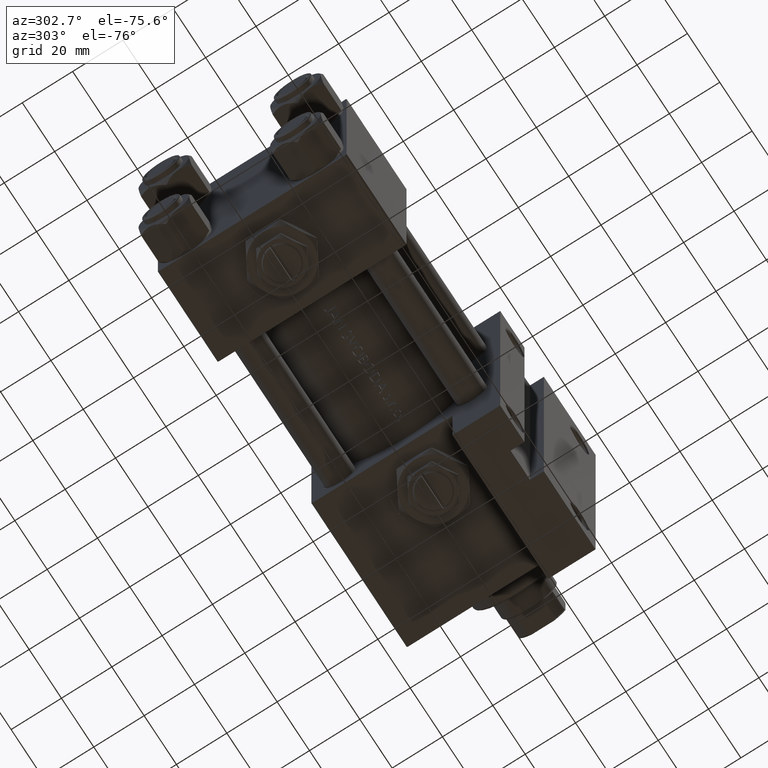
[diagram: clean part render]
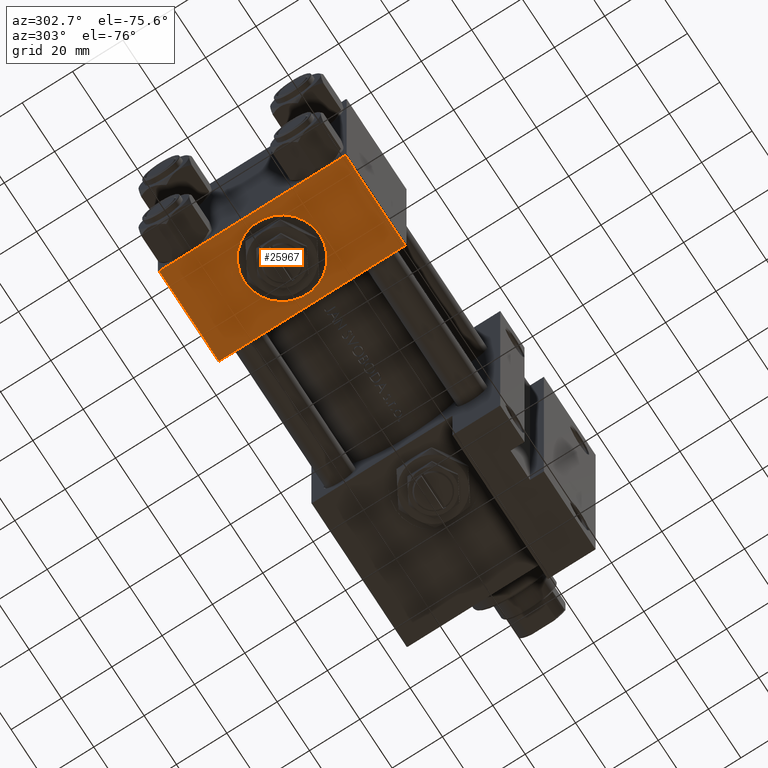
[diagram: same view with one face highlighted and labeled with its STEP entity id]
A machine part, auxiliary view. The second image highlights one B-rep face of the part: STEP entity #25967.
In plain terms, the highlighted planar face has unit normal (0, 0, -1).
Its self-contained STEP definition (entity closure, byte-faithful):
#267 = EDGE_LOOP ( 'NONE', ( #18812, #18388, #18801, #21603 ) ) ;
#329 = DIRECTION ( 'NONE',  ( -1.000000000000000000, 0.000000000000000000, 0.000000000000000000 ) ) ;
#1080 = CARTESIAN_POINT ( 'NONE',  ( 37.00000000000000000, 37.49999999999999289, -36.99999999999998579 ) ) ;
#2549 = ORIENTED_EDGE ( 'NONE', *, *, #33579, .F. ) ;
#3849 = LINE ( 'NONE', #1080, #5016 ) ;
#4113 = AXIS2_PLACEMENT_3D ( 'NONE', #27528, #20009, #45617 ) ;
#5016 = VECTOR ( 'NONE', #329, 1000.000000000000000 ) ;
#5230 = VERTEX_POINT ( 'NONE', #39012 ) ;
#8533 = DIRECTION ( 'NONE',  ( 0.000000000000000000, 0.000000000000000000, -1.000000000000000000 ) ) ;
#10283 = VERTEX_POINT ( 'NONE', #22530 ) ;
#10729 = CIRCLE ( 'NONE', #25963, 15.00000000000000178 ) ;
#12163 = CARTESIAN_POINT ( 'NONE',  ( 0.000000000000000000, 37.49999999999999289, 37.50000000000000000 ) ) ;
#12794 = LINE ( 'NONE', #24083, #15486 ) ;
#14521 = CARTESIAN_POINT ( 'NONE',  ( 37.00000000000000000, 37.49999999999999289, -36.99999999999998579 ) ) ;
#15486 = VECTOR ( 'NONE', #8533, 1000.000000000000000 ) ;
#17958 = CARTESIAN_POINT ( 'NONE',  ( 18.50000000000000000, 37.49999999999999289, 0.000000000000000000 ) ) ;
#18388 = ORIENTED_EDGE ( 'NONE', *, *, #28582, .T. ) ;
#18765 = FACE_BOUND ( 'NONE', #48417, .T. ) ;
#18801 = ORIENTED_EDGE ( 'NONE', *, *, #37466, .F. ) ;
#18812 = ORIENTED_EDGE ( 'NONE', *, *, #39961, .T. ) ;
#18873 = DIRECTION ( 'NONE',  ( 0.000000000000000000, 1.000000000000000000, 0.000000000000000000 ) ) ;
#19959 = LINE ( 'NONE', #12163, #30889 ) ;
#20009 = DIRECTION ( 'NONE',  ( -0.000000000000000000, 1.000000000000000000, 0.000000000000000000 ) ) ;
#21603 = ORIENTED_EDGE ( 'NONE', *, *, #42030, .T. ) ;
#21712 = DIRECTION ( 'NONE',  ( 0.000000000000000000, 1.000000000000000000, 0.000000000000000000 ) ) ;
#21799 = VECTOR ( 'NONE', #33337, 1000.000000000000000 ) ;
#22270 = PLANE ( 'NONE',  #4113 ) ;
#22296 = LINE ( 'NONE', #41628, #21799 ) ;
#22530 = CARTESIAN_POINT ( 'NONE',  ( 18.50000000000000000, 37.49999999999999289, 15.00000000000000178 ) ) ;
#24083 = CARTESIAN_POINT ( 'NONE',  ( 37.00000000000000000, 37.49999999999999289, 37.50000000000000000 ) ) ;
#24201 = DIRECTION ( 'NONE',  ( 0.000000000000000000, 0.000000000000000000, -1.000000000000000000 ) ) ;
#25118 = AXIS2_PLACEMENT_3D ( 'NONE', #37203, #18873, #26133 ) ;
#25319 = CARTESIAN_POINT ( 'NONE',  ( 37.00000000000000000, 37.49999999999999289, 37.00000000000000000 ) ) ;
#25963 = AXIS2_PLACEMENT_3D ( 'NONE', #17958, #21712, #33257 ) ;
#25967 = ADVANCED_FACE ( 'NONE', ( #18765, #34063 ), #22270, .T. ) ;
#26133 = DIRECTION ( 'NONE',  ( 0.000000000000000000, 0.000000000000000000, 1.000000000000000000 ) ) ;
#27528 = CARTESIAN_POINT ( 'NONE',  ( 37.00000000000000000, 37.49999999999999289, 37.50000000000000000 ) ) ;
#28582 = EDGE_CURVE ( 'NONE', #44053, #43721, #3849, .T. ) ;
#28860 = ORIENTED_EDGE ( 'NONE', *, *, #35069, .F. ) ;
#29158 = CARTESIAN_POINT ( 'NONE',  ( 0.000000000000000000, 37.49999999999999289, -36.99999999999998579 ) ) ;
#30889 = VECTOR ( 'NONE', #24201, 1000.000000000000000 ) ;
#33257 = DIRECTION ( 'NONE',  ( 0.000000000000000000, 0.000000000000000000, 1.000000000000000000 ) ) ;
#33337 = DIRECTION ( 'NONE',  ( 1.000000000000000000, 0.000000000000000000, 0.000000000000000000 ) ) ;
#33579 = EDGE_CURVE ( 'NONE', #10283, #42837, #46790, .T. ) ;
#34063 = FACE_OUTER_BOUND ( 'NONE', #267, .T. ) ;
#35069 = EDGE_CURVE ( 'NONE', #42837, #10283, #10729, .T. ) ;
#37203 = CARTESIAN_POINT ( 'NONE',  ( 18.50000000000000000, 37.49999999999999289, 0.000000000000000000 ) ) ;
#37466 = EDGE_CURVE ( 'NONE', #5230, #43721, #19959, .T. ) ;
#39012 = CARTESIAN_POINT ( 'NONE',  ( 0.000000000000000000, 37.49999999999999289, 37.00000000000000000 ) ) ;
#39961 = EDGE_CURVE ( 'NONE', #40094, #44053, #12794, .T. ) ;
#40094 = VERTEX_POINT ( 'NONE', #25319 ) ;
#41628 = CARTESIAN_POINT ( 'NONE',  ( 37.00000000000000000, 37.49999999999999289, 37.00000000000000000 ) ) ;
#42030 = EDGE_CURVE ( 'NONE', #5230, #40094, #22296, .T. ) ;
#42837 = VERTEX_POINT ( 'NONE', #44666 ) ;
#43721 = VERTEX_POINT ( 'NONE', #29158 ) ;
#44053 = VERTEX_POINT ( 'NONE', #14521 ) ;
#44666 = CARTESIAN_POINT ( 'NONE',  ( 18.50000000000000355, 37.49999999999999289, -15.00000000000000178 ) ) ;
#45617 = DIRECTION ( 'NONE',  ( 0.000000000000000000, -0.000000000000000000, 1.000000000000000000 ) ) ;
#46790 = CIRCLE ( 'NONE', #25118, 15.00000000000000178 ) ;
#48417 = EDGE_LOOP ( 'NONE', ( #2549, #28860 ) ) ;